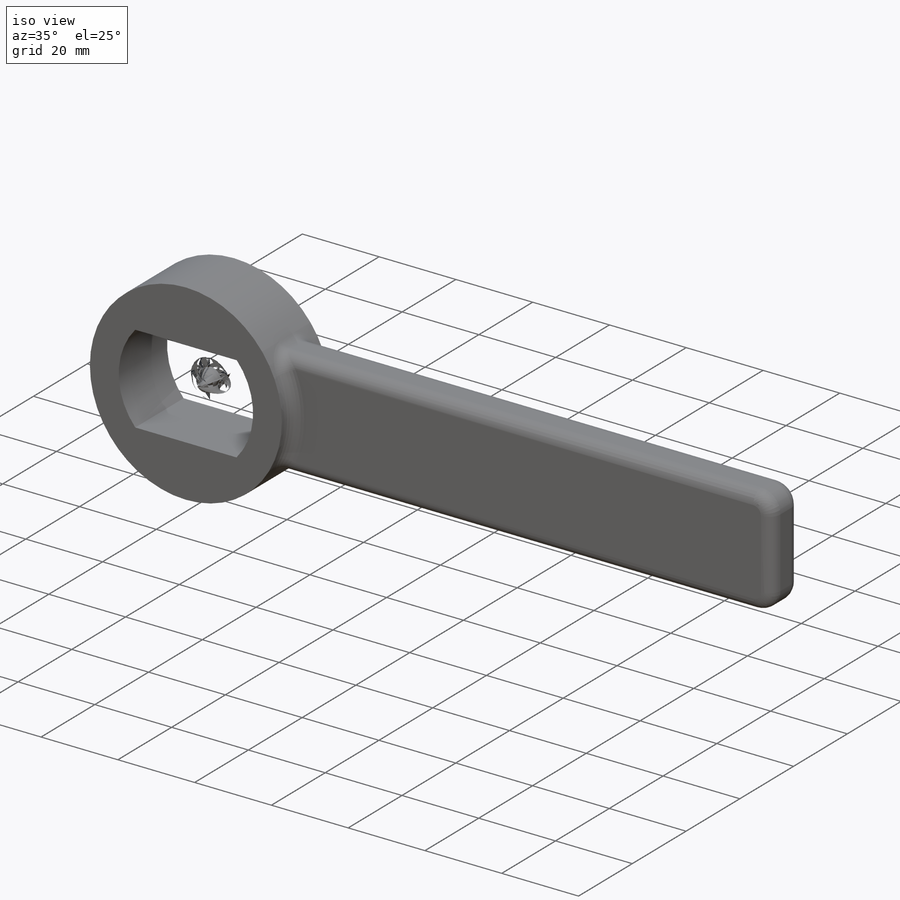
[diagram: iso view]
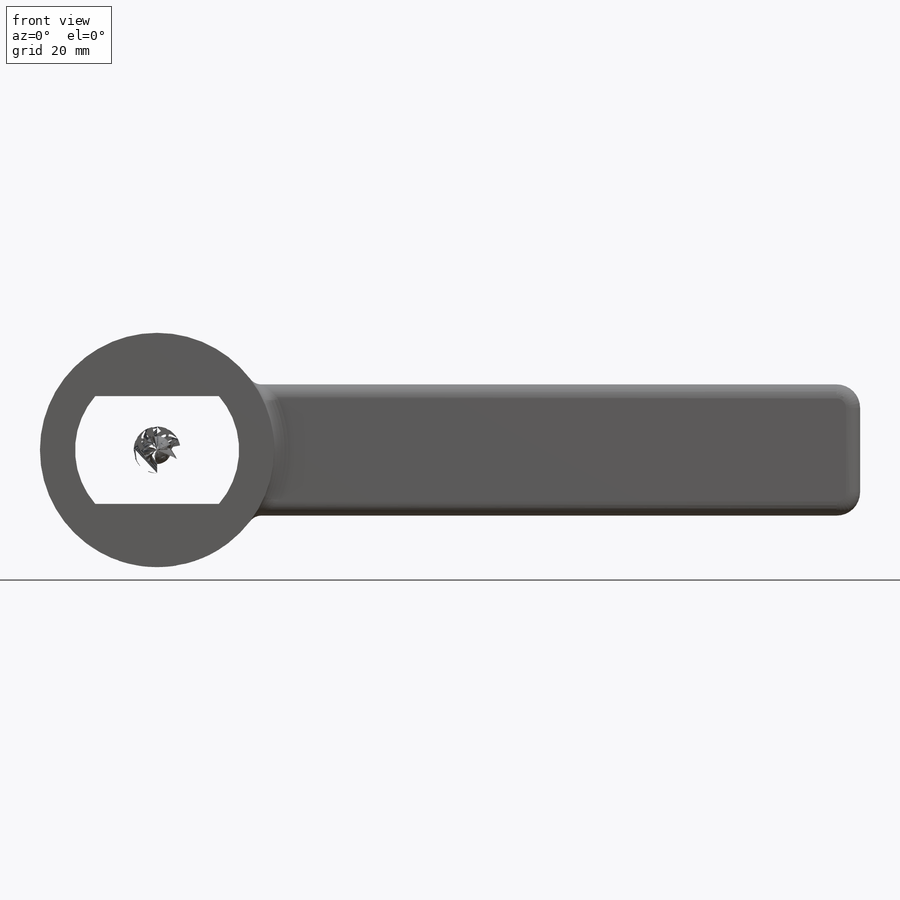
[diagram: front view]
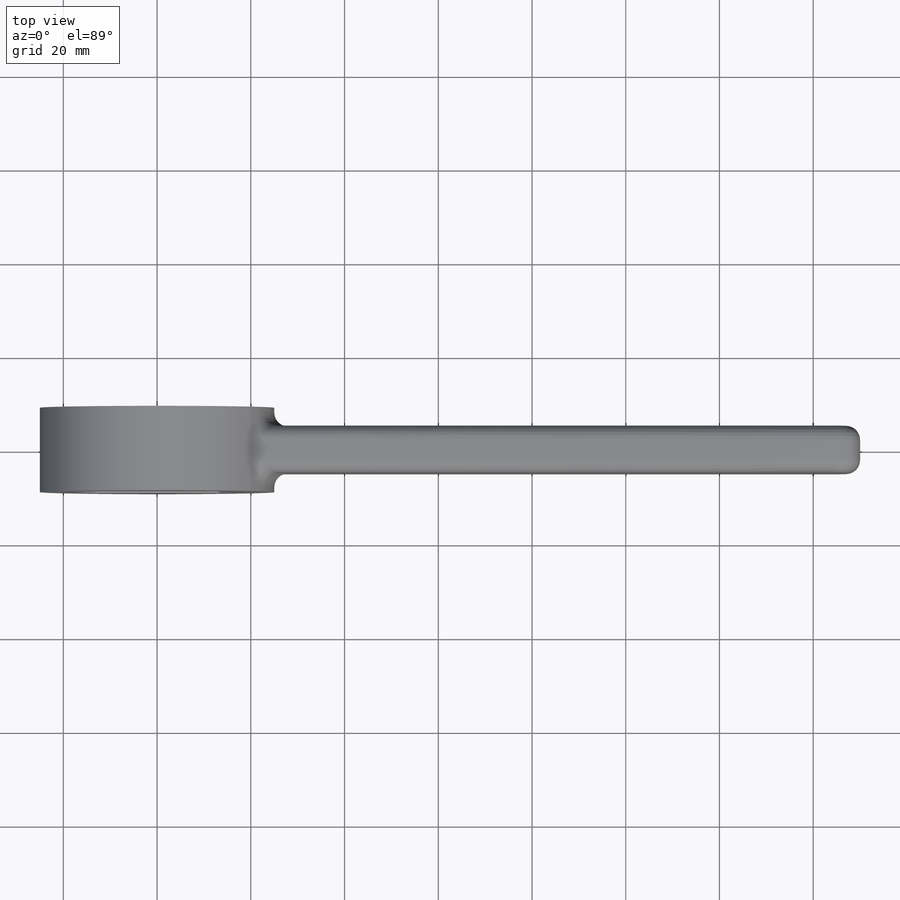
[diagram: top view]
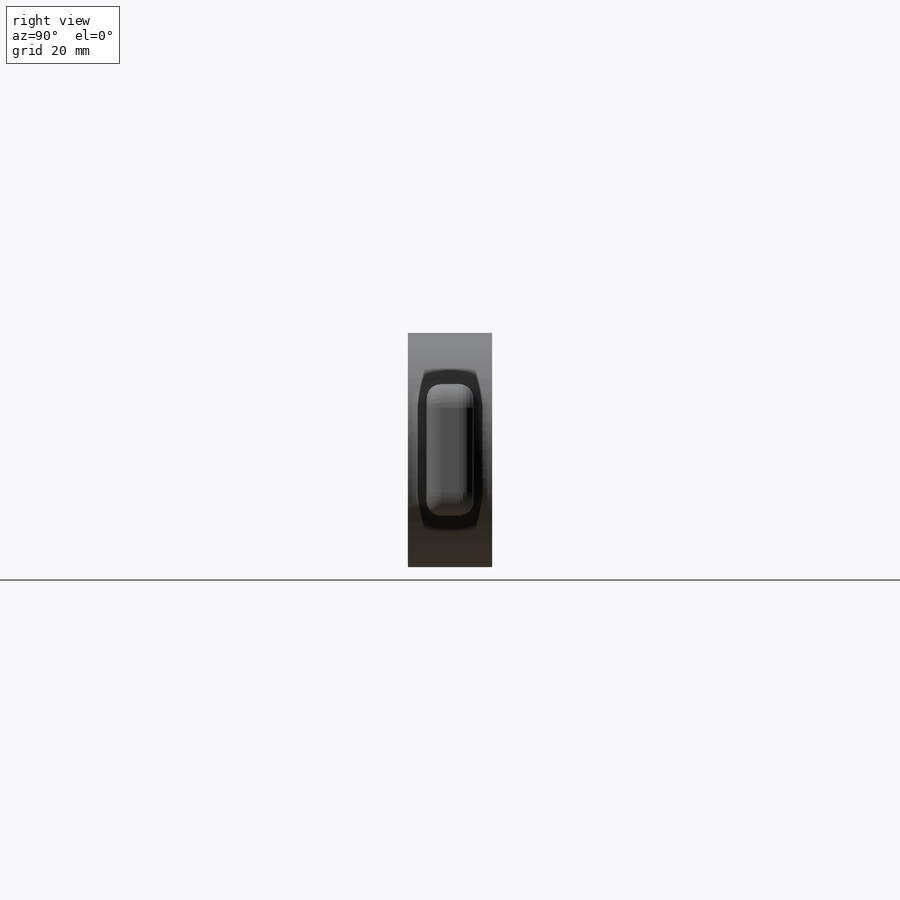
[diagram: right view]
SOLIDWORKS PART (.sldprt)
format: sldprt  version: not decoded by parser v0  size: 338,432 bytes
history: native  units: mm
features: plane x3, sketch x2, extrude x2, fillet x2, material x1 (+9 scaffold rows collapsed)
feature tree (19):
  scaffold x9  (default folders/planes/origin — collapsed)
  material  "Сталь"
  plane  "Спереди"
  plane  "Сверху"
  plane  "Справа"
  sketch  "Эскиз1"  dims[D1=50.0mm D4=35.0mm D2=28.0mm D3=150.0mm D5=23.0mm]
  extrude  "Бобышка-Вытянуть1"  Depth=18mm
  extrude  "Бобышка-Вытянуть2"  [1 undecoded]
  sketch  "Эскиз1<5>"  dims[D1=10.0mm]
  fillet  "Скругление3"  Radius=5mm
  fillet  "Скругление4"  Radius=3mm
decode coverage: 5 of 6 modeling features carry decoded parameters
note: 1 parameter value undecoded
note: suppression state not decoded; provenance and decode notes live in map.json
